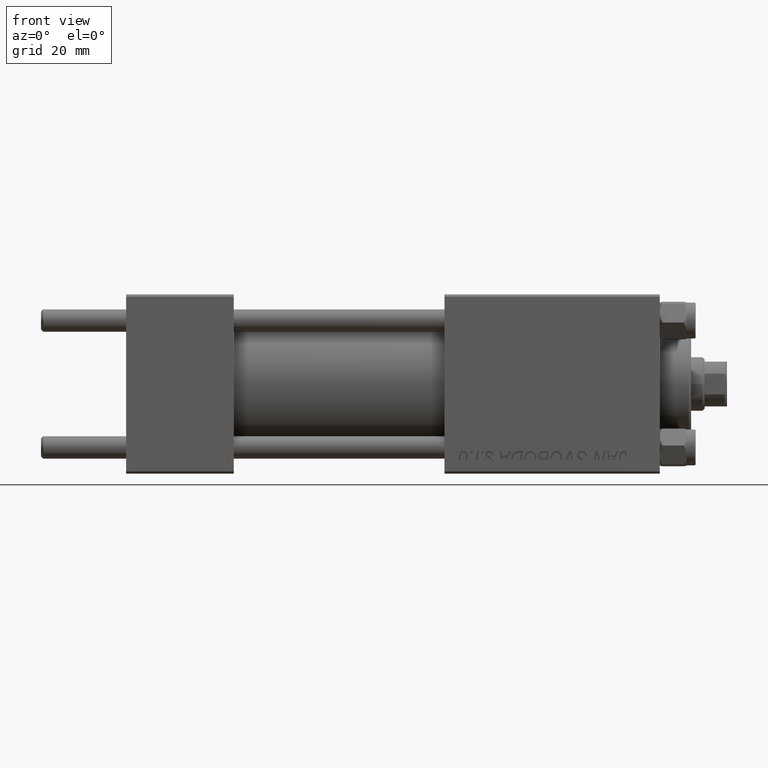
[diagram: clean part render]
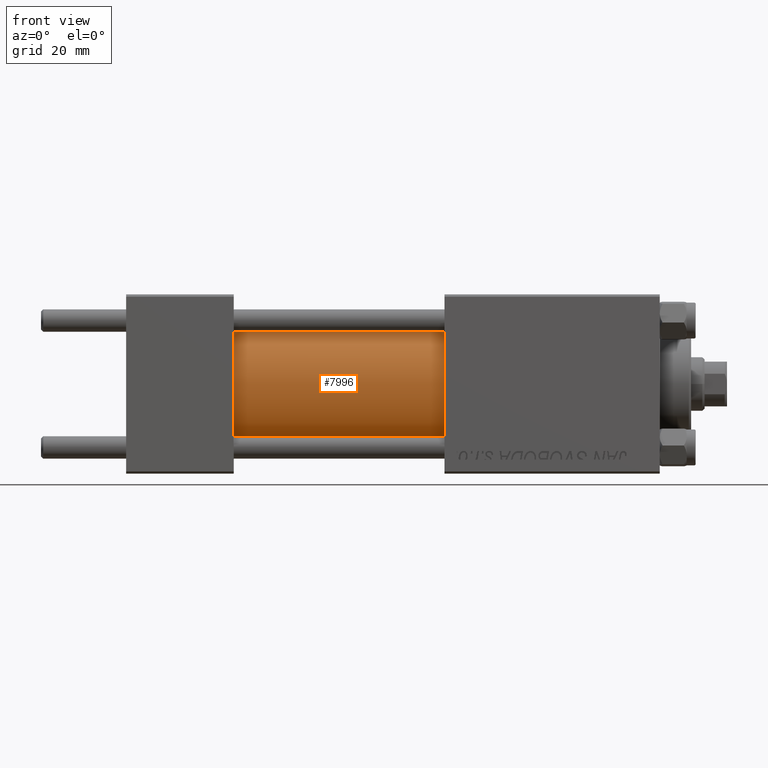
[diagram: same view with one face highlighted and labeled with its STEP entity id]
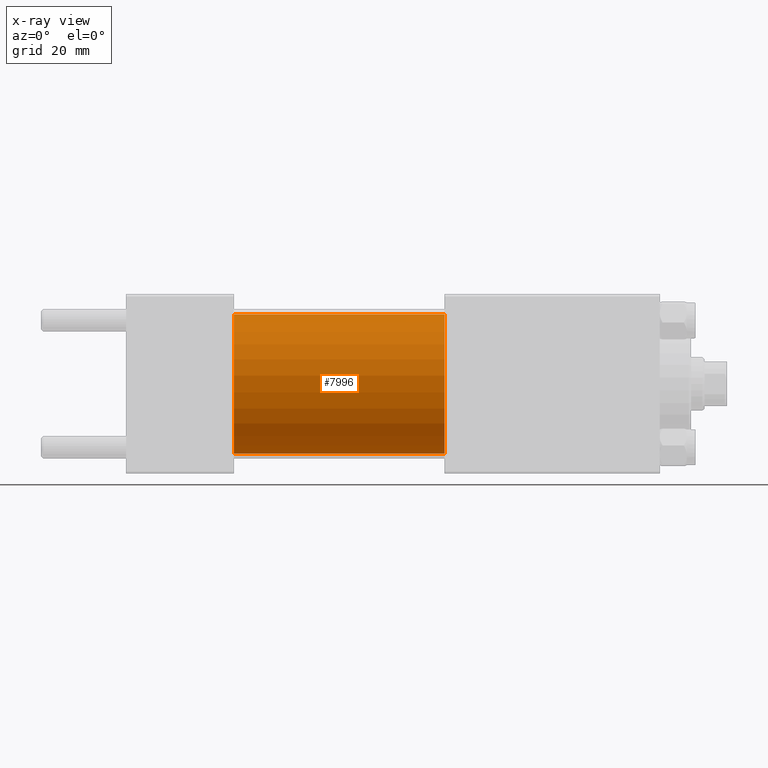
[diagram: x-ray of the same camera — body ghosted, the highlighted face saturated]
A machine part, front view. The second image highlights one B-rep face of the part: STEP entity #7996.
The next image is the same camera in x-ray: the body ghosted, the highlighted face saturated — about 0% of this face is hidden behind the body in this view.
In plain terms, the highlighted cylindrical surface (partial cylindrical patch) has radius 15.5 mm, axis along (-1, -0, -0).
Its self-contained STEP definition (entity closure, byte-faithful):
#3852 = VERTEX_POINT ( 'NONE', #13765 ) ;
#7214 = AXIS2_PLACEMENT_3D ( 'NONE', #40475, #41214, #36437 ) ;
#7996 = ADVANCED_FACE ( 'NONE', ( #25600 ), #41008, .T. ) ;
#9433 = EDGE_CURVE ( 'NONE', #41445, #3852, #18536, .T. ) ;
#9684 = DIRECTION ( 'NONE',  ( 0.000000000000000000, 0.000000000000000000, 1.000000000000000000 ) ) ;
#10336 = EDGE_CURVE ( 'NONE', #37214, #34713, #38736, .T. ) ;
#10389 = DIRECTION ( 'NONE',  ( -1.000000000000000000, -0.000000000000000000, -0.000000000000000000 ) ) ;
#10688 = ORIENTED_EDGE ( 'NONE', *, *, #10336, .F. ) ;
#11842 = ORIENTED_EDGE ( 'NONE', *, *, #29741, .F. ) ;
#12060 = ORIENTED_EDGE ( 'NONE', *, *, #9433, .T. ) ;
#12398 = ORIENTED_EDGE ( 'NONE', *, *, #26937, .T. ) ;
#13765 = CARTESIAN_POINT ( 'NONE',  ( 24.00000000000000000, 1.898202538678397557E-15, -15.50000000000000000 ) ) ;
#18081 = EDGE_LOOP ( 'NONE', ( #11842, #10688, #12398, #12060 ) ) ;
#18536 = CIRCLE ( 'NONE', #7214, 15.50000000000000000 ) ;
#18933 = VECTOR ( 'NONE', #10389, 1000.000000000000000 ) ;
#20275 = DIRECTION ( 'NONE',  ( -1.000000000000000000, -0.000000000000000000, -0.000000000000000000 ) ) ;
#22184 = CARTESIAN_POINT ( 'NONE',  ( 24.00000000000000000, 0.000000000000000000, 15.50000000000000000 ) ) ;
#22255 = CARTESIAN_POINT ( 'NONE',  ( 71.00000000000001421, 1.898202538678397557E-15, -15.50000000000000000 ) ) ;
#24078 = CARTESIAN_POINT ( 'NONE',  ( 71.00000000000001421, 0.000000000000000000, 15.50000000000000000 ) ) ;
#25600 = FACE_OUTER_BOUND ( 'NONE', #18081, .T. ) ;
#26802 = DIRECTION ( 'NONE',  ( 1.000000000000000000, 0.000000000000000000, 0.000000000000000000 ) ) ;
#26937 = EDGE_CURVE ( 'NONE', #37214, #41445, #35459, .T. ) ;
#28959 = AXIS2_PLACEMENT_3D ( 'NONE', #37222, #49307, #9684 ) ;
#29741 = EDGE_CURVE ( 'NONE', #34713, #3852, #45002, .T. ) ;
#30792 = CARTESIAN_POINT ( 'NONE',  ( 71.00000000000001421, 1.898202538678397557E-15, -15.50000000000000000 ) ) ;
#34629 = CARTESIAN_POINT ( 'NONE',  ( 71.00000000000001421, 0.000000000000000000, 15.50000000000000000 ) ) ;
#34713 = VERTEX_POINT ( 'NONE', #30792 ) ;
#35459 = LINE ( 'NONE', #24078, #43110 ) ;
#36437 = DIRECTION ( 'NONE',  ( 0.000000000000000000, 0.000000000000000000, 1.000000000000000000 ) ) ;
#37214 = VERTEX_POINT ( 'NONE', #34629 ) ;
#37222 = CARTESIAN_POINT ( 'NONE',  ( 71.00000000000001421, 0.000000000000000000, 0.000000000000000000 ) ) ;
#37927 = CARTESIAN_POINT ( 'NONE',  ( 71.00000000000001421, 0.000000000000000000, 0.000000000000000000 ) ) ;
#38671 = DIRECTION ( 'NONE',  ( 0.000000000000000000, 0.000000000000000000, -1.000000000000000000 ) ) ;
#38736 = CIRCLE ( 'NONE', #46810, 15.50000000000000000 ) ;
#40475 = CARTESIAN_POINT ( 'NONE',  ( 24.00000000000000000, 0.000000000000000000, 0.000000000000000000 ) ) ;
#41008 = CYLINDRICAL_SURFACE ( 'NONE', #28959, 15.50000000000000000 ) ;
#41214 = DIRECTION ( 'NONE',  ( 1.000000000000000000, 0.000000000000000000, 0.000000000000000000 ) ) ;
#41445 = VERTEX_POINT ( 'NONE', #22184 ) ;
#43110 = VECTOR ( 'NONE', #20275, 1000.000000000000000 ) ;
#45002 = LINE ( 'NONE', #22255, #18933 ) ;
#46810 = AXIS2_PLACEMENT_3D ( 'NONE', #37927, #26802, #38671 ) ;
#49307 = DIRECTION ( 'NONE',  ( -1.000000000000000000, -0.000000000000000000, -0.000000000000000000 ) ) ;